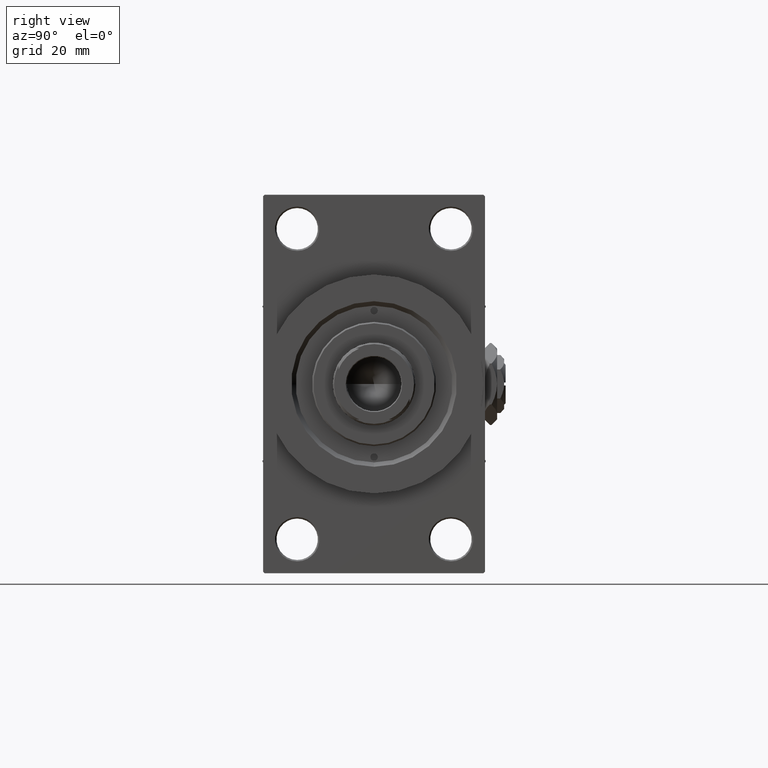
[diagram: clean part render]
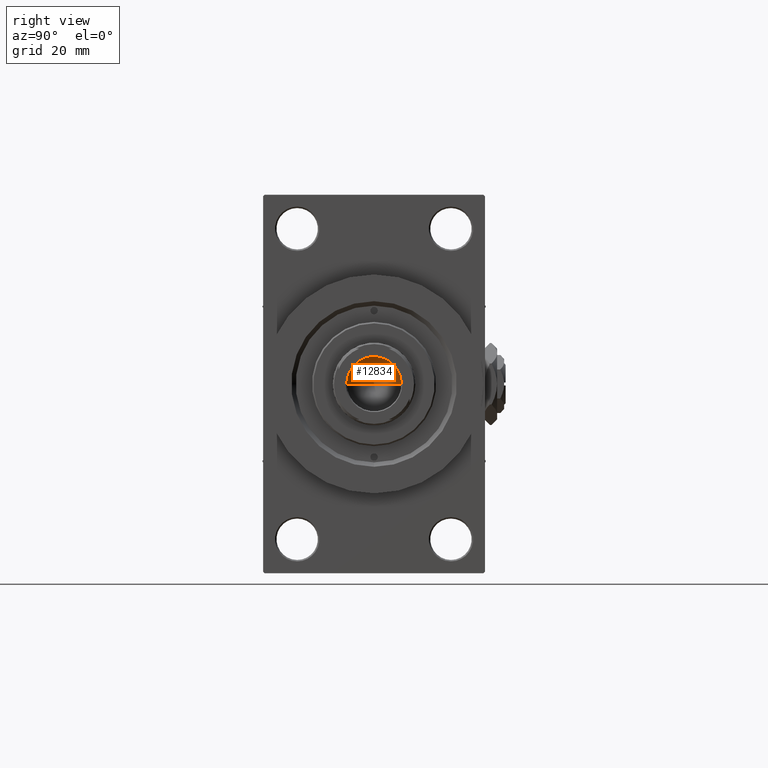
[diagram: same view with one face highlighted and labeled with its STEP entity id]
A machine part, right view. The second image highlights one B-rep face of the part: STEP entity #12834.
In plain terms, the highlighted conical surface has half-angle 59 deg.
Its self-contained STEP definition (entity closure, byte-faithful):
#1230 = DIRECTION ( 'NONE',  ( -0.000000000000000000, -0.000000000000000000, 1.000000000000000000 ) ) ;
#2919 = EDGE_CURVE ( 'NONE', #34001, #30364, #41099, .T. ) ;
#4499 = CARTESIAN_POINT ( 'NONE',  ( 0.000000000000000000, 0.000000000000000000, 107.0000000000000142 ) ) ;
#5460 = FACE_OUTER_BOUND ( 'NONE', #8000, .T. ) ;
#6648 = AXIS2_PLACEMENT_3D ( 'NONE', #42735, #1230, #31552 ) ;
#6799 = CARTESIAN_POINT ( 'NONE',  ( -9.249999999999992895, 1.132798289211300712E-15, 107.0000000000000142 ) ) ;
#8000 = EDGE_LOOP ( 'NONE', ( #17794, #33653, #26927 ) ) ;
#8461 = VERTEX_POINT ( 'NONE', #45308 ) ;
#11646 = AXIS2_PLACEMENT_3D ( 'NONE', #4499, #23116, #41777 ) ;
#12834 = ADVANCED_FACE ( 'NONE', ( #5460 ), #36019, .F. ) ;
#12915 = LINE ( 'NONE', #43490, #43990 ) ;
#13615 = EDGE_CURVE ( 'NONE', #34001, #8461, #12915, .T. ) ;
#15618 = CARTESIAN_POINT ( 'NONE',  ( -9.769621978240258809E-15, 0.000000000000000000, 101.4420392739950785 ) ) ;
#17794 = ORIENTED_EDGE ( 'NONE', *, *, #13615, .F. ) ;
#21956 = DIRECTION ( 'NONE',  ( -0.8571673007021117785, 1.049727191138617956E-16, 0.5150380749100550437 ) ) ;
#23116 = DIRECTION ( 'NONE',  ( -0.000000000000000000, -0.000000000000000000, 1.000000000000000000 ) ) ;
#26927 = ORIENTED_EDGE ( 'NONE', *, *, #35289, .T. ) ;
#30364 = VERTEX_POINT ( 'NONE', #39567 ) ;
#31552 = DIRECTION ( 'NONE',  ( 1.000000000000000000, 0.000000000000000000, 0.000000000000000000 ) ) ;
#31562 = DIRECTION ( 'NONE',  ( 0.8571673007021117785, 0.000000000000000000, 0.5150380749100550437 ) ) ;
#33055 = CIRCLE ( 'NONE', #11646, 9.249999999999992895 ) ;
#33653 = ORIENTED_EDGE ( 'NONE', *, *, #2919, .T. ) ;
#34001 = VERTEX_POINT ( 'NONE', #15618 ) ;
#35289 = EDGE_CURVE ( 'NONE', #30364, #8461, #33055, .T. ) ;
#36019 = CONICAL_SURFACE ( 'NONE', #6648, 9.249999999999992895, 1.029744258676653423 ) ;
#39567 = CARTESIAN_POINT ( 'NONE',  ( -9.249999999999992895, 1.132798289211300712E-15, 107.0000000000000142 ) ) ;
#40552 = VECTOR ( 'NONE', #21956, 1000.000000000000000 ) ;
#41099 = LINE ( 'NONE', #6799, #40552 ) ;
#41777 = DIRECTION ( 'NONE',  ( 1.000000000000000000, 0.000000000000000000, 0.000000000000000000 ) ) ;
#42735 = CARTESIAN_POINT ( 'NONE',  ( 0.000000000000000000, 0.000000000000000000, 107.0000000000000142 ) ) ;
#43490 = CARTESIAN_POINT ( 'NONE',  ( 9.249999999999992895, 0.000000000000000000, 107.0000000000000142 ) ) ;
#43990 = VECTOR ( 'NONE', #31562, 1000.000000000000000 ) ;
#45308 = CARTESIAN_POINT ( 'NONE',  ( 9.249999999999992895, 0.000000000000000000, 107.0000000000000142 ) ) ;